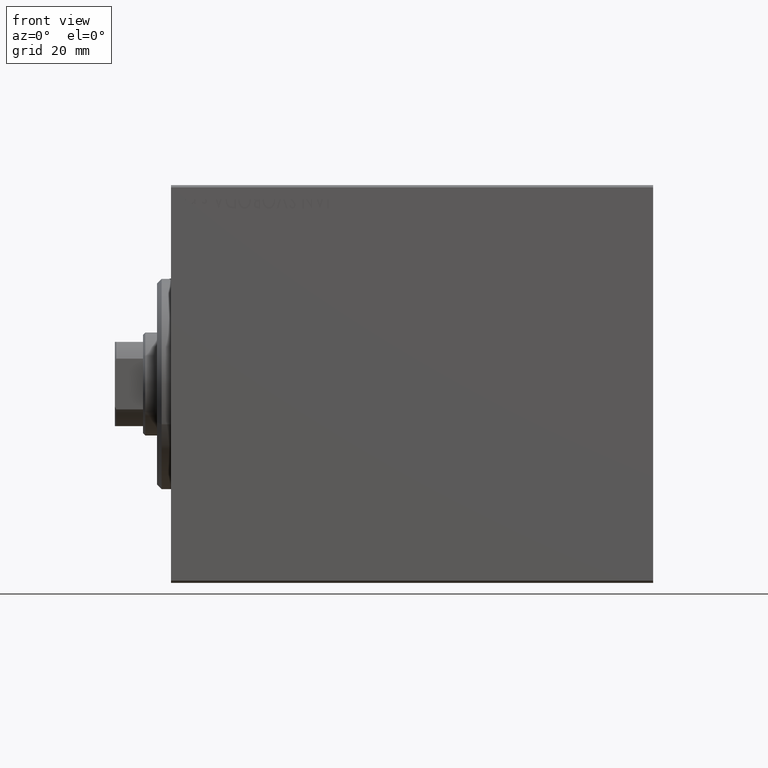
[diagram: clean part render]
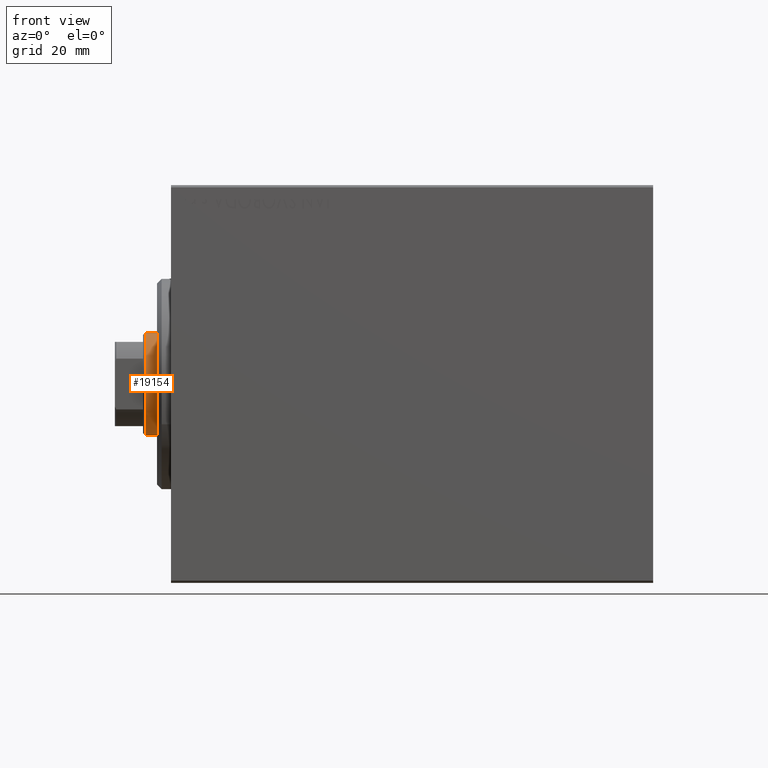
[diagram: same view with one face highlighted and labeled with its STEP entity id]
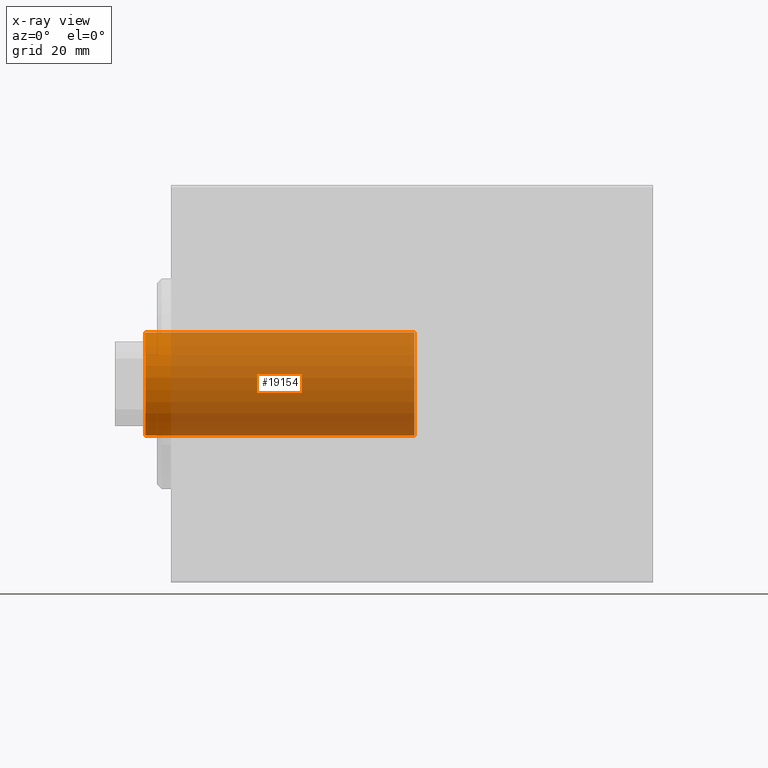
[diagram: x-ray of the same camera — body ghosted, the highlighted face saturated]
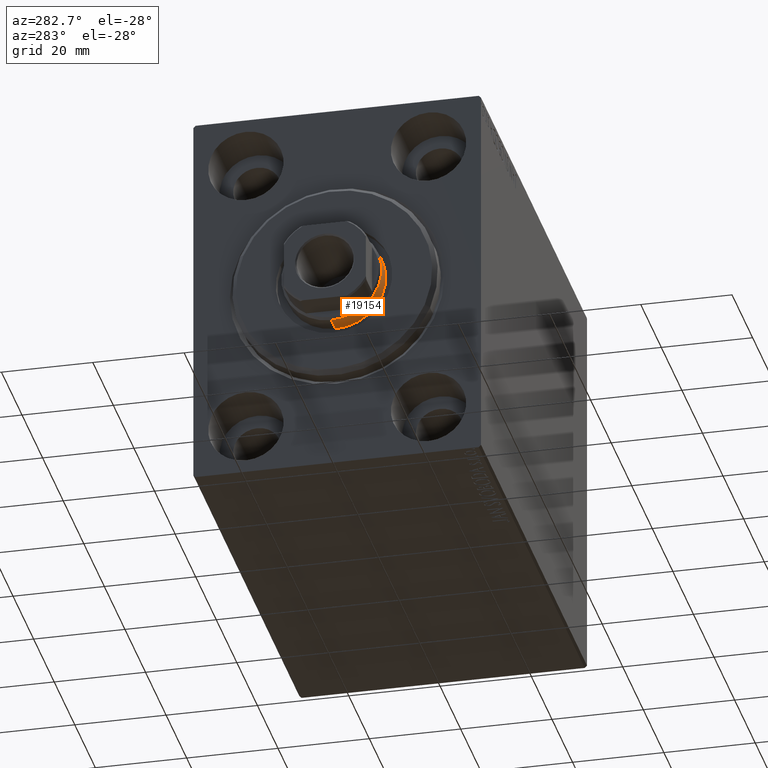
[diagram: same view with one face highlighted and labeled with its STEP entity id]
A machine part, front view. The second image highlights one B-rep face of the part: STEP entity #19154.
The next image is the same camera in x-ray: the body ghosted, the highlighted face saturated — about 91% of this face is hidden behind the body in this view.
A second angle (auxiliary view) of the same face is appended — the face is thin or edge-on in the first view.
In plain terms, the highlighted cylindrical surface (partial cylindrical patch) has radius 11 mm, axis along (1, -0, -0).
Its self-contained STEP definition (entity closure, byte-faithful):
#4046 = DIRECTION ( 'NONE',  ( -1.000000000000000000, 0.000000000000000000, 0.000000000000000000 ) ) ;
#4127 = LINE ( 'NONE', #43022, #27261 ) ;
#4275 = DIRECTION ( 'NONE',  ( -0.000000000000000000, -0.000000000000000000, -1.000000000000000000 ) ) ;
#4925 = LINE ( 'NONE', #38086, #25900 ) ;
#5434 = EDGE_CURVE ( 'NONE', #15380, #43445, #37101, .T. ) ;
#6769 = EDGE_CURVE ( 'NONE', #15267, #43445, #4127, .T. ) ;
#7729 = CIRCLE ( 'NONE', #14101, 11.00000000000000000 ) ;
#11236 = DIRECTION ( 'NONE',  ( 0.000000000000000000, 0.000000000000000000, -1.000000000000000000 ) ) ;
#11704 = AXIS2_PLACEMENT_3D ( 'NONE', #23856, #22984, #36466 ) ;
#13357 = EDGE_CURVE ( 'NONE', #25853, #15380, #4925, .T. ) ;
#14101 = AXIS2_PLACEMENT_3D ( 'NONE', #34443, #11236, #37326 ) ;
#14222 = DIRECTION ( 'NONE',  ( -0.000000000000000000, -0.000000000000000000, -1.000000000000000000 ) ) ;
#14435 = ORIENTED_EDGE ( 'NONE', *, *, #5434, .T. ) ;
#15267 = VERTEX_POINT ( 'NONE', #39056 ) ;
#15380 = VERTEX_POINT ( 'NONE', #36801 ) ;
#16734 = EDGE_LOOP ( 'NONE', ( #24106, #28436, #25144, #14435 ) ) ;
#16781 = CARTESIAN_POINT ( 'NONE',  ( -11.00000000000000000, 0.000000000000000000, 96.50000000000004263 ) ) ;
#19154 = ADVANCED_FACE ( 'NONE', ( #40760 ), #20625, .T. ) ;
#20625 = CYLINDRICAL_SURFACE ( 'NONE', #27474, 11.00000000000000000 ) ;
#20845 = EDGE_CURVE ( 'NONE', #15267, #25853, #7729, .T. ) ;
#21497 = CARTESIAN_POINT ( 'NONE',  ( 0.000000000000000000, 0.000000000000000000, 97.00000000000000000 ) ) ;
#22984 = DIRECTION ( 'NONE',  ( 0.000000000000000000, 0.000000000000000000, 1.000000000000000000 ) ) ;
#23856 = CARTESIAN_POINT ( 'NONE',  ( 0.000000000000000000, 0.000000000000000000, 39.00000000000000000 ) ) ;
#24106 = ORIENTED_EDGE ( 'NONE', *, *, #6769, .F. ) ;
#25144 = ORIENTED_EDGE ( 'NONE', *, *, #13357, .T. ) ;
#25853 = VERTEX_POINT ( 'NONE', #16781 ) ;
#25900 = VECTOR ( 'NONE', #4275, 1000.000000000000000 ) ;
#27261 = VECTOR ( 'NONE', #42374, 1000.000000000000000 ) ;
#27474 = AXIS2_PLACEMENT_3D ( 'NONE', #21497, #14222, #4046 ) ;
#28436 = ORIENTED_EDGE ( 'NONE', *, *, #20845, .T. ) ;
#29004 = CARTESIAN_POINT ( 'NONE',  ( 11.00000000000000000, 1.347111479062088207E-15, 39.00000000000000000 ) ) ;
#34443 = CARTESIAN_POINT ( 'NONE',  ( 0.000000000000000000, 0.000000000000000000, 96.50000000000004263 ) ) ;
#36466 = DIRECTION ( 'NONE',  ( 1.000000000000000000, 0.000000000000000000, 0.000000000000000000 ) ) ;
#36801 = CARTESIAN_POINT ( 'NONE',  ( -11.00000000000000000, 0.000000000000000000, 39.00000000000000000 ) ) ;
#37101 = CIRCLE ( 'NONE', #11704, 11.00000000000000000 ) ;
#37326 = DIRECTION ( 'NONE',  ( 1.000000000000000000, 0.000000000000000000, 0.000000000000000000 ) ) ;
#38086 = CARTESIAN_POINT ( 'NONE',  ( -11.00000000000000000, 0.000000000000000000, 97.00000000000000000 ) ) ;
#39056 = CARTESIAN_POINT ( 'NONE',  ( 11.00000000000000000, 1.347111479062088207E-15, 96.50000000000004263 ) ) ;
#40760 = FACE_OUTER_BOUND ( 'NONE', #16734, .T. ) ;
#42374 = DIRECTION ( 'NONE',  ( -0.000000000000000000, -0.000000000000000000, -1.000000000000000000 ) ) ;
#43022 = CARTESIAN_POINT ( 'NONE',  ( 11.00000000000000000, 1.347111479062088207E-15, 97.00000000000000000 ) ) ;
#43445 = VERTEX_POINT ( 'NONE', #29004 ) ;